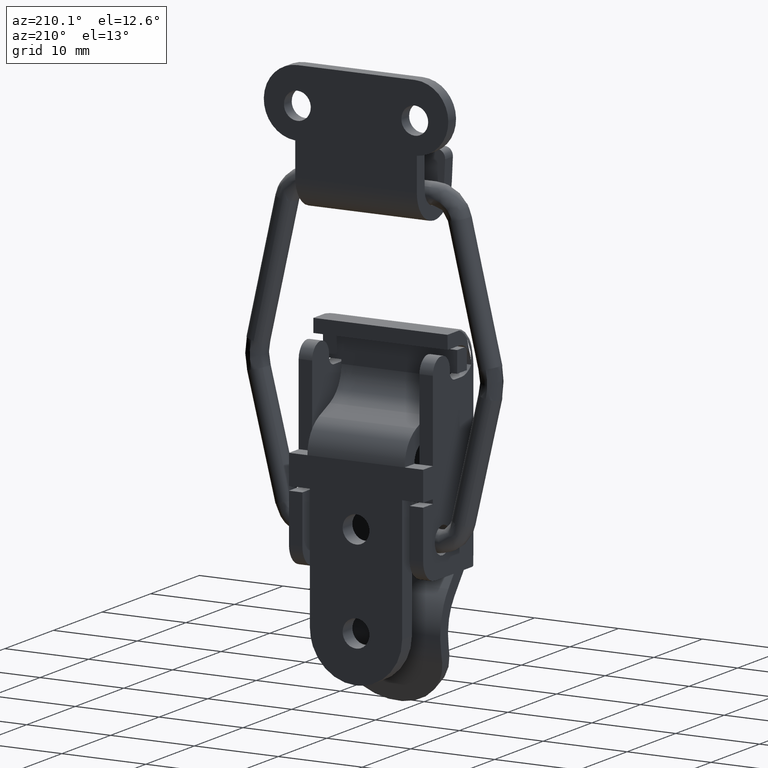
[diagram: clean part render]
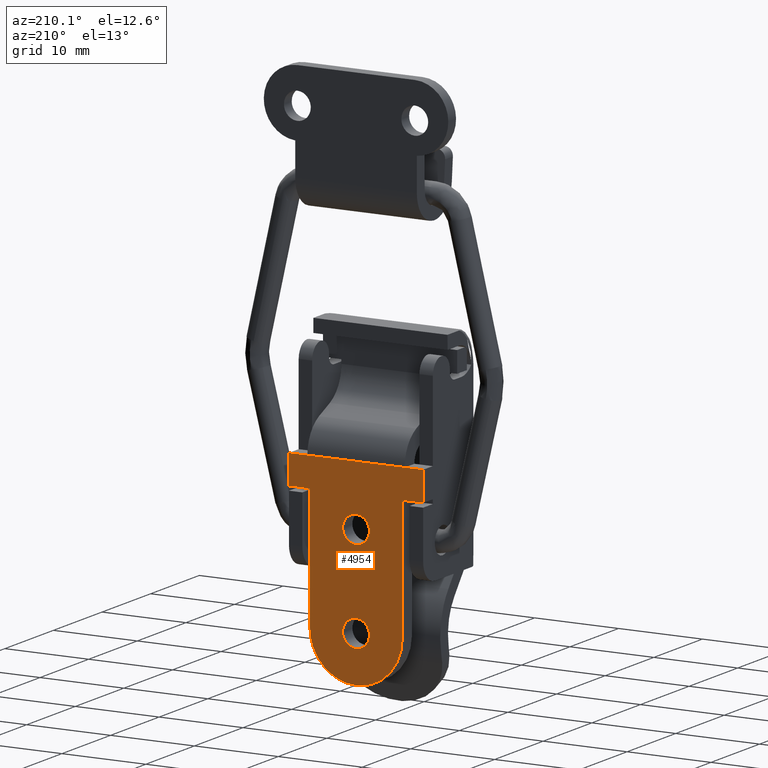
[diagram: same view with one face highlighted and labeled with its STEP entity id]
A machine part, auxiliary view. The second image highlights one B-rep face of the part: STEP entity #4954.
In plain terms, the highlighted face is a freeform B-spline surface patch.
Its self-contained STEP definition (entity closure, byte-faithful):
#3601=CARTESIAN_POINT('',(-1.146641377619789,4.000000000001780,-8.881509029619625));
#3602=VERTEX_POINT('',#3601);
#3608=CARTESIAN_POINT('',(1.421085E-012,4.000000000001780,-8.397399999999999));
#3609=VERTEX_POINT('',#3608);
#3610=CARTESIAN_POINT('',(1.421085E-012,4.000000000001780,-8.397399999999999));
#3611=CARTESIAN_POINT('',(-0.199777069978861,4.000000000001777,-8.397212866830795));
#3612=CARTESIAN_POINT('',(-0.519231305815234,4.000000000001782,-8.458059581121718));
#3613=CARTESIAN_POINT('',(-0.898200827317026,4.000000000001788,-8.658756398537314));
#3614=CARTESIAN_POINT('',(-1.072352521662893,4.000000000001770,-8.805154434762127));
#3615=CARTESIAN_POINT('',(-1.146641377619789,4.000000000001780,-8.881509029619625));
#3616=B_SPLINE_CURVE_WITH_KNOTS('',3,(#3610,#3611,#3612,#3613,#3614,#3615),.UNSPECIFIED.,.F.,.U.,(4,1,1,4),(0.000000018981200,0.599259671031083,0.958810987342932,1.278414643434506),.UNSPECIFIED.);
#3617=EDGE_CURVE('',#3609,#3602,#3616,.T.);
#3619=CARTESIAN_POINT('',(1.600000000001031,4.000000000001780,-9.997398882899390));
#3620=VERTEX_POINT('',#3619);
#3621=CARTESIAN_POINT('',(1.600000000001031,4.000000000001780,-9.997398882899390));
#3622=CARTESIAN_POINT('',(1.600234261583006,4.000000000001782,-9.787916680475689));
#3623=CARTESIAN_POINT('',(1.537393643821512,4.000000000001783,-9.473941494628258));
#3624=CARTESIAN_POINT('',(1.338918697477463,4.000000000001775,-9.102754656562604));
#3625=CARTESIAN_POINT('',(1.138665134627622,4.000000000001801,-8.858732799856298));
#3626=CARTESIAN_POINT('',(0.884481833360833,4.000000000001768,-8.650130268319133));
#3627=CARTESIAN_POINT('',(0.510405222560986,4.000000000001789,-8.455991600771313));
#3628=CARTESIAN_POINT('',(0.196378532029840,4.000000000001778,-8.397223629772977));
#3629=CARTESIAN_POINT('',(1.421085E-012,4.000000000001780,-8.397399999999999));
#3630=B_SPLINE_CURVE_WITH_KNOTS('',3,(#3621,#3622,#3623,#3624,#3625,#3626,#3627,#3628,#3629),.UNSPECIFIED.,.F.,.U.,(4,1,1,1,1,1,4),(0.000000044294005,0.628334243494221,0.942514234570562,1.256668303541938,1.570821807784393,1.924273675058549,2.513336561303909),.UNSPECIFIED.);
#3631=EDGE_CURVE('',#3620,#3609,#3630,.T.);
#3633=CARTESIAN_POINT('',(1.421085E-012,4.000000000001780,-11.597400000000000));
#3634=VERTEX_POINT('',#3633);
#3635=CARTESIAN_POINT('',(1.421085E-012,4.000000000001780,-11.597400000000000));
#3636=CARTESIAN_POINT('',(0.183284739125794,4.000000000001784,-11.597545400616211));
#3637=CARTESIAN_POINT('',(0.444986066000123,4.000000000001781,-11.551903543515261));
#3638=CARTESIAN_POINT('',(0.780972802480876,4.000000000001782,-11.402944600566810));
#3639=CARTESIAN_POINT('',(1.021578325898303,4.000000000001782,-11.242193735792130));
#3640=CARTESIAN_POINT('',(1.235481936631536,4.000000000001772,-11.028270890055220));
#3641=CARTESIAN_POINT('',(1.406436688641957,4.000000000001792,-10.779099753219571));
#3642=CARTESIAN_POINT('',(1.555717045279240,4.000000000001764,-10.442407607055900));
#3643=CARTESIAN_POINT('',(1.600092265272990,4.000000000001799,-10.167580120428241));
#3644=CARTESIAN_POINT('',(1.600000000001031,4.000000000001780,-9.997398882899390));
#3645=B_SPLINE_CURVE_WITH_KNOTS('',3,(#3635,#3636,#3637,#3638,#3639,#3640,#3641,#3642,#3643,#3644),.UNSPECIFIED.,.F.,.U.,(4,1,1,1,1,1,1,4),(0.000000042762624,0.549792557750607,0.785424600826343,1.099596308572083,1.413740072065259,1.688640914572548,2.002819506946762,2.513337820568073),.UNSPECIFIED.);
#3646=EDGE_CURVE('',#3634,#3620,#3645,.T.);
#3648=CARTESIAN_POINT('',(-1.179643998743367,4.000000000001780,-11.078344460416449));
#3649=VERTEX_POINT('',#3648);
#3650=CARTESIAN_POINT('',(-1.179643998743367,4.000000000001780,-11.078344460416449));
#3651=CARTESIAN_POINT('',(-1.076997733330954,4.000000000001779,-11.190442528493421));
#3652=CARTESIAN_POINT('',(-0.871828404679217,4.000000000001782,-11.358470220746510));
#3653=CARTESIAN_POINT('',(-0.469709734088343,4.000000000001780,-11.547987296467870));
#3654=CARTESIAN_POINT('',(-0.179644031979945,4.000000000001783,-11.597528084580849));
#3655=CARTESIAN_POINT('',(1.421085E-012,4.000000000001780,-11.597400000000000));
#3656=B_SPLINE_CURVE_WITH_KNOTS('',3,(#3650,#3651,#3652,#3653,#3654,#3655),.UNSPECIFIED.,.F.,.U.,(4,1,1,4),(0.000000012665836,0.455980283477575,0.787601589498147,1.326487513596948),.UNSPECIFIED.);
#3657=EDGE_CURVE('',#3649,#3634,#3656,.T.);
#3740=CARTESIAN_POINT('',(-1.599999999998189,4.000000000001780,-9.997401117100603));
#3741=VERTEX_POINT('',#3740);
#3742=CARTESIAN_POINT('',(-1.599999999998189,4.000000000001780,-9.997401117100603));
#3743=CARTESIAN_POINT('',(-1.600132754820304,4.000000000001779,-10.182860163107160));
#3744=CARTESIAN_POINT('',(-1.530421868667412,4.000000000001786,-10.578369085247230));
#3745=CARTESIAN_POINT('',(-1.321810399686888,4.000000000001776,-10.923516363144950));
#3746=CARTESIAN_POINT('',(-1.179643998743367,4.000000000001780,-11.078344460416449));
#3747=B_SPLINE_CURVE_WITH_KNOTS('',3,(#3742,#3743,#3744,#3745,#3746),.UNSPECIFIED.,.F.,.U.,(4,1,4),(0.000000021087042,0.556340671579398,1.186849361718108),.UNSPECIFIED.);
#3748=EDGE_CURVE('',#3741,#3649,#3747,.T.);
#3750=CARTESIAN_POINT('',(-1.146641377619789,4.000000000001780,-8.881509029619625));
#3751=CARTESIAN_POINT('',(-1.299392980116014,4.000000000001786,-9.038057732136700));
#3752=CARTESIAN_POINT('',(-1.524572989056201,4.000000000001773,-9.392933900895761));
#3753=CARTESIAN_POINT('',(-1.600157747302713,4.000000000001784,-9.804425619806695));
#3754=CARTESIAN_POINT('',(-1.599999999998189,4.000000000001780,-9.997401117100603));
#3755=B_SPLINE_CURVE_WITH_KNOTS('',3,(#3750,#3751,#3752,#3753,#3754),.UNSPECIFIED.,.F.,.U.,(4,1,4),(0.000000016034194,0.656050582261812,1.234923501442157),.UNSPECIFIED.);
#3756=EDGE_CURVE('',#3602,#3741,#3755,.T.);
#3801=CARTESIAN_POINT('',(-1.146641377619788,4.000000000001780,2.118490970380461));
#3802=VERTEX_POINT('',#3801);
#3808=CARTESIAN_POINT('',(1.421085E-012,4.000000000001780,2.602600000000086));
#3809=VERTEX_POINT('',#3808);
#3810=CARTESIAN_POINT('',(1.421085E-012,4.000000000001780,2.602600000000086));
#3811=CARTESIAN_POINT('',(-0.146487615282167,4.000000000001784,2.602651526551100));
#3812=CARTESIAN_POINT('',(-0.399469141226661,4.000000000001774,2.567599188922527));
#3813=CARTESIAN_POINT('',(-0.798054124702989,4.000000000001789,2.410942461580541));
#3814=CARTESIAN_POINT('',(-1.025966704683239,4.000000000001770,2.242635267647432));
#3815=CARTESIAN_POINT('',(-1.146641377619788,4.000000000001780,2.118490970380461));
#3816=B_SPLINE_CURVE_WITH_KNOTS('',3,(#3810,#3811,#3812,#3813,#3814,#3815),.UNSPECIFIED.,.F.,.U.,(4,1,1,4),(0.000000018981263,0.439459795652165,0.759053258994595,1.278414643434506),.UNSPECIFIED.);
#3817=EDGE_CURVE('',#3809,#3802,#3816,.T.);
#3819=CARTESIAN_POINT('',(1.600000000001031,4.000000000001780,1.002601117100695));
#3820=VERTEX_POINT('',#3819);
#3821=CARTESIAN_POINT('',(1.600000000001031,4.000000000001780,1.002601117100695));
#3822=CARTESIAN_POINT('',(1.600233683864075,4.000000000001779,1.212082705963542));
#3823=CARTESIAN_POINT('',(1.537395226043047,4.000000000001779,1.526060829505922));
#3824=CARTESIAN_POINT('',(1.338913632565354,4.000000000001784,1.897238134198291));
#3825=CARTESIAN_POINT('',(1.096978854037896,4.000000000001777,2.192161193431524));
#3826=CARTESIAN_POINT('',(0.785425036407334,4.000000000001782,2.417373546483900));
#3827=CARTESIAN_POINT('',(0.392665825429452,4.000000000001778,2.568777189714523));
#3828=CARTESIAN_POINT('',(0.143993364638617,4.000000000001786,2.602651446235164));
#3829=CARTESIAN_POINT('',(1.421085E-012,4.000000000001780,2.602600000000086));
#3830=B_SPLINE_CURVE_WITH_KNOTS('',3,(#3821,#3822,#3823,#3824,#3825,#3826,#3827,#3828,#3829),.UNSPECIFIED.,.F.,.U.,(4,1,1,1,1,1,4),(0.000000044294493,0.628334243494516,0.942514234570754,1.256668303542040,1.767186362328292,2.081364797346176,2.513336561303908),.UNSPECIFIED.);
#3831=EDGE_CURVE('',#3820,#3809,#3830,.T.);
#3833=CARTESIAN_POINT('',(1.421085E-012,4.000000000001780,-0.597399999999914));
#3834=VERTEX_POINT('',#3833);
#3835=CARTESIAN_POINT('',(1.421085E-012,4.000000000001780,-0.597399999999914));
#3836=CARTESIAN_POINT('',(0.157084624262077,4.000000000001775,-0.597467956792770));
#3837=CARTESIAN_POINT('',(0.445024091262789,4.000000000001797,-0.554633868398798));
#3838=CARTESIAN_POINT('',(0.879143995689827,4.000000000001776,-0.362298442332140));
#3839=CARTESIAN_POINT('',(1.211091631189111,4.000000000001776,-0.076006517590296));
#3840=CARTESIAN_POINT('',(1.419255082715875,4.000000000001786,0.244245132571730));
#3841=CARTESIAN_POINT('',(1.559936115028487,4.000000000001781,0.583775321946855));
#3842=CARTESIAN_POINT('',(1.600093012985627,4.000000000001767,0.832417450481348));
#3843=CARTESIAN_POINT('',(1.600000000001031,4.000000000001780,1.002601117100695));
#3844=B_SPLINE_CURVE_WITH_KNOTS('',3,(#3835,#3836,#3837,#3838,#3839,#3840,#3841,#3842,#3843),.UNSPECIFIED.,.F.,.U.,(4,1,1,1,1,1,4),(0.000000042762843,0.471247558168351,0.863970334000122,1.413740072065283,1.767187248264849,2.002819506946757,2.513337820568069),.UNSPECIFIED.);
#3845=EDGE_CURVE('',#3834,#3820,#3844,.T.);
#3847=CARTESIAN_POINT('',(-1.179643998743367,4.000000000001780,-0.078344460416362));
#3848=VERTEX_POINT('',#3847);
#3849=CARTESIAN_POINT('',(-1.179643998743367,4.000000000001780,-0.078344460416362));
#3850=CARTESIAN_POINT('',(-1.039761277696553,4.000000000001776,-0.231335087867867));
#3851=CARTESIAN_POINT('',(-0.778824633906794,4.000000000001787,-0.423021863232308));
#3852=CARTESIAN_POINT('',(-0.359231014182297,4.000000000001776,-0.569868312008938));
#3853=CARTESIAN_POINT('',(-0.124357827527163,4.000000000001783,-0.597426949082251));
#3854=CARTESIAN_POINT('',(1.421085E-012,4.000000000001780,-0.597399999999914));
#3855=B_SPLINE_CURVE_WITH_KNOTS('',3,(#3849,#3850,#3851,#3852,#3853,#3854),.UNSPECIFIED.,.F.,.U.,(4,1,1,4),(0.000000012665776,0.621791312571488,0.953412879344306,1.326487513596949),.UNSPECIFIED.);
#3856=EDGE_CURVE('',#3848,#3834,#3855,.T.);
#3939=CARTESIAN_POINT('',(-1.599999999998189,4.000000000001780,1.002598882899482));
#3940=VERTEX_POINT('',#3939);
#3941=CARTESIAN_POINT('',(-1.599999999998189,4.000000000001780,1.002598882899482));
#3942=CARTESIAN_POINT('',(-1.600132106035419,4.000000000001776,0.817139823559915));
#3943=CARTESIAN_POINT('',(-1.530422391393594,4.000000000001786,0.421631008329447));
#3944=CARTESIAN_POINT('',(-1.321810182457080,4.000000000001780,0.076483612220173));
#3945=CARTESIAN_POINT('',(-1.179643998743367,4.000000000001780,-0.078344460416362));
#3946=B_SPLINE_CURVE_WITH_KNOTS('',3,(#3941,#3942,#3943,#3944,#3945),.UNSPECIFIED.,.F.,.U.,(4,1,4),(0.000000021087281,0.556340671579478,1.186849361718104),.UNSPECIFIED.);
#3947=EDGE_CURVE('',#3940,#3848,#3946,.T.);
#3949=CARTESIAN_POINT('',(-1.146641377619788,4.000000000001780,2.118490970380461));
#3950=CARTESIAN_POINT('',(-1.263341932473897,4.000000000001782,1.998699705676772));
#3951=CARTESIAN_POINT('',(-1.420994096870962,4.000000000001781,1.775274175850098));
#3952=CARTESIAN_POINT('',(-1.567355717039873,4.000000000001778,1.388481891144603));
#3953=CARTESIAN_POINT('',(-1.600045123581846,4.000000000001780,1.144102183135451));
#3954=CARTESIAN_POINT('',(-1.599999999998189,4.000000000001780,1.002598882899482));
#3955=B_SPLINE_CURVE_WITH_KNOTS('',3,(#3949,#3950,#3951,#3952,#3953,#3954),.UNSPECIFIED.,.F.,.U.,(4,1,1,4),(0.000000016034546,0.501692600260814,0.810414270953009,1.234923501442159),.UNSPECIFIED.);
#3956=EDGE_CURVE('',#3802,#3940,#3955,.T.);
#3976=CARTESIAN_POINT('',(-7.999999999998580,4.000000000001780,4.702600000000091));
#3977=VERTEX_POINT('',#3976);
#3983=CARTESIAN_POINT('',(-5.499999999998580,4.000000000001780,4.702600000000091));
#3984=VERTEX_POINT('',#3983);
#3985=CARTESIAN_POINT('',(-5.499999999998580,4.000000000001780,4.702600000000091));
#3986=CARTESIAN_POINT('',(-7.999999999998580,4.000000000001780,4.702600000000091));
#3987=QUASI_UNIFORM_CURVE('',1,(#3985,#3986),.UNSPECIFIED.,.F.,.U.);
#3988=EDGE_CURVE('',#3984,#3977,#3987,.T.);
#4031=CARTESIAN_POINT('',(-5.499999999998580,4.000000000001780,-9.997400000000001));
#4032=VERTEX_POINT('',#4031);
#4038=CARTESIAN_POINT('',(-0.017490209435965,4.000000000001780,-15.497372190163601));
#4039=VERTEX_POINT('',#4038);
#4040=CARTESIAN_POINT('',(-5.499999999998580,4.000000000001780,-9.997400000000001));
#4041=CARTESIAN_POINT('',(-5.500076916020734,4.000000000001776,-10.401557259412550));
#4042=CARTESIAN_POINT('',(-5.432854584549775,4.000000000001781,-11.007740351294510));
#4043=CARTESIAN_POINT('',(-5.175900007078488,4.000000000001792,-11.916579699770310));
#4044=CARTESIAN_POINT('',(-4.852286129526089,4.000000000001727,-12.636346785732989));
#4045=CARTESIAN_POINT('',(-4.332941789167863,4.000000000001806,-13.426036676037890));
#4046=CARTESIAN_POINT('',(-3.627837335180034,4.000000000001765,-14.187512592487440));
#4047=CARTESIAN_POINT('',(-2.682489120923470,4.000000000001784,-14.847369162264330));
#4048=CARTESIAN_POINT('',(-1.453916659517412,4.000000000001747,-15.359713458803091));
#4049=CARTESIAN_POINT('',(-0.556381179160321,4.000000000001795,-15.495871901966570));
#4050=CARTESIAN_POINT('',(-0.017490209435965,4.000000000001780,-15.497372190163601));
#4051=B_SPLINE_CURVE_WITH_KNOTS('',3,(#4040,#4041,#4042,#4043,#4044,#4045,#4046,#4047,#4048,#4049,#4050),.UNSPECIFIED.,.F.,.U.,(4,1,1,1,1,1,1,1,4),(0.000000038804195,1.212451017167719,1.818691335724957,2.829080166680051,3.570039526391335,4.647744958956583,5.927580115957831,7.005335062755110,8.621943438344452),.UNSPECIFIED.);
#4052=EDGE_CURVE('',#4032,#4039,#4051,.T.);
#4073=CARTESIAN_POINT('',(-5.499999999998580,4.000000000001780,-9.997400000000001));
#4074=CARTESIAN_POINT('',(-5.499999999998580,4.000000000001780,4.702600000000091));
#4075=QUASI_UNIFORM_CURVE('',1,(#4073,#4074),.UNSPECIFIED.,.F.,.U.);
#4076=EDGE_CURVE('',#4032,#3984,#4075,.T.);
#4117=CARTESIAN_POINT('',(-5.799999999993530,4.000000000001780,8.202613904918884));
#4118=VERTEX_POINT('',#4117);
#4228=CARTESIAN_POINT('',(-7.999999999998580,3.999999999993610,8.202600000000091));
#4229=VERTEX_POINT('',#4228);
#4230=CARTESIAN_POINT('',(-7.999999999998580,3.999999999993610,8.202600000000091));
#4231=CARTESIAN_POINT('',(-5.799999999993530,4.000000000001780,8.202613904918884));
#4232=QUASI_UNIFORM_CURVE('',1,(#4230,#4231),.UNSPECIFIED.,.F.,.U.);
#4233=EDGE_CURVE('',#4229,#4118,#4232,.T.);
#4257=CARTESIAN_POINT('',(0.017490209438807,4.000000000001780,-15.497372190163601));
#4258=VERTEX_POINT('',#4257);
#4259=CARTESIAN_POINT('',(5.499999999982849,4.000000000001780,-9.997400000008570));
#4260=VERTEX_POINT('',#4259);
#4261=CARTESIAN_POINT('',(0.017490209438807,4.000000000001780,-15.497372190163601));
#4262=CARTESIAN_POINT('',(0.331826423631874,4.000000000001776,-15.496392401652059));
#4263=CARTESIAN_POINT('',(1.027674971639179,4.000000000001782,-15.434361106707920));
#4264=CARTESIAN_POINT('',(1.917500925958051,4.000000000001795,-15.179708253703440));
#4265=CARTESIAN_POINT('',(2.872273087099665,4.000000000001756,-14.725503021911839));
#4266=CARTESIAN_POINT('',(3.659507317440541,4.000000000001799,-14.154200481268679));
#4267=CARTESIAN_POINT('',(4.404444852698660,4.000000000001768,-13.339802435526380));
#4268=CARTESIAN_POINT('',(4.862270937704737,4.000000000001787,-12.614994213082420));
#4269=CARTESIAN_POINT('',(5.194106844557702,4.000000000001778,-11.852000521826330));
#4270=CARTESIAN_POINT('',(5.431933251260623,4.000000000001782,-11.030206853689970));
#4271=CARTESIAN_POINT('',(5.500061882334649,4.000000000001785,-10.379099558452390));
#4272=CARTESIAN_POINT('',(5.499999999982849,4.000000000001780,-9.997400000008570));
#4273=B_SPLINE_CURVE_WITH_KNOTS('',3,(#4261,#4262,#4263,#4264,#4265,#4266,#4267,#4268,#4269,#4270,#4271,#4272),.UNSPECIFIED.,.F.,.U.,(4,1,1,1,1,1,1,1,1,4),(0.000000038805739,0.943020218408040,2.088126474914316,2.761717308220626,4.108916491938818,4.984545769853881,6.062298895993227,6.668534940908477,7.476851890554950,8.621943438326939),.UNSPECIFIED.);
#4274=EDGE_CURVE('',#4258,#4260,#4273,.T.);
#4321=CARTESIAN_POINT('',(5.500000000005960,4.000000000001780,4.702599999991440));
#4322=VERTEX_POINT('',#4321);
#4323=CARTESIAN_POINT('',(5.500000000005960,4.000000000001780,4.702599999991440));
#4324=CARTESIAN_POINT('',(5.499999999982849,4.000000000001780,-9.997400000008570));
#4325=QUASI_UNIFORM_CURVE('',1,(#4323,#4324),.UNSPECIFIED.,.F.,.U.);
#4326=EDGE_CURVE('',#4322,#4260,#4325,.T.);
#4349=CARTESIAN_POINT('',(8.000000000001421,3.999999999994820,4.702599999989480));
#4350=VERTEX_POINT('',#4349);
#4351=CARTESIAN_POINT('',(8.000000000001421,3.999999999994820,4.702599999989480));
#4352=CARTESIAN_POINT('',(5.500000000005960,4.000000000001780,4.702599999991440));
#4353=QUASI_UNIFORM_CURVE('',1,(#4351,#4352),.UNSPECIFIED.,.F.,.U.);
#4354=EDGE_CURVE('',#4350,#4322,#4353,.T.);
#4426=CARTESIAN_POINT('',(5.800000000006410,4.000000000001780,8.202613904914324));
#4427=VERTEX_POINT('',#4426);
#4480=CARTESIAN_POINT('',(8.000000000011459,4.000000000001780,8.202599999987511));
#4481=VERTEX_POINT('',#4480);
#4487=CARTESIAN_POINT('',(5.800000000006410,4.000000000001780,8.202613904914324));
#4488=CARTESIAN_POINT('',(8.000000000011459,4.000000000001780,8.202599999987511));
#4489=QUASI_UNIFORM_CURVE('',1,(#4487,#4488),.UNSPECIFIED.,.F.,.U.);
#4490=EDGE_CURVE('',#4427,#4481,#4489,.T.);
#4586=CARTESIAN_POINT('',(-0.017490209435965,4.000000000001780,-15.497372190163601));
#4587=CARTESIAN_POINT('',(0.017490209438807,4.000000000001780,-15.497372190163601));
#4588=QUASI_UNIFORM_CURVE('',1,(#4586,#4587),.UNSPECIFIED.,.F.,.U.);
#4589=EDGE_CURVE('',#4039,#4258,#4588,.T.);
#4661=CARTESIAN_POINT('',(8.000000000011459,4.000000000001780,8.202599999987511));
#4662=CARTESIAN_POINT('',(8.000000000001421,3.999999999994820,4.702599999989480));
#4663=QUASI_UNIFORM_CURVE('',1,(#4661,#4662),.UNSPECIFIED.,.F.,.U.);
#4664=EDGE_CURVE('',#4481,#4350,#4663,.T.);
#4703=CARTESIAN_POINT('',(-7.999999999998580,3.999999999993610,8.202600000000091));
#4704=CARTESIAN_POINT('',(-7.999999999998580,4.000000000001780,4.702600000000091));
#4705=QUASI_UNIFORM_CURVE('',1,(#4703,#4704),.UNSPECIFIED.,.F.,.U.);
#4706=EDGE_CURVE('',#4229,#3977,#4705,.T.);
#4817=CARTESIAN_POINT('',(-5.799999999993530,4.000000000001780,8.202613904918884));
#4818=CARTESIAN_POINT('',(5.800000000006410,4.000000000001780,8.202613904914324));
#4819=QUASI_UNIFORM_CURVE('',1,(#4817,#4818),.UNSPECIFIED.,.F.,.U.);
#4820=EDGE_CURVE('',#4118,#4427,#4819,.T.);
#4919=CARTESIAN_POINT('',(-8.799199968987978,3.999999999993202,9.386428164433079));
#4920=CARTESIAN_POINT('',(-8.799199968987978,4.000000000002215,-16.681187085360971));
#4921=CARTESIAN_POINT('',(8.799200398154298,3.999999999993202,9.386428164433079));
#4922=CARTESIAN_POINT('',(8.799200398154298,4.000000000002215,-16.681187085360971));
#4923=B_SPLINE_SURFACE_WITH_KNOTS('',1,1,((#4919,#4921),(#4920,#4922)),.UNSPECIFIED.,.F.,.F.,.U.,(2,2),(2,2),(0.0,26.067615249794049),(0.0,17.598400367142279),.UNSPECIFIED.);
#4924=ORIENTED_EDGE('',*,*,#3988,.T.);
#4925=ORIENTED_EDGE('',*,*,#4706,.F.);
#4926=ORIENTED_EDGE('',*,*,#4233,.T.);
#4927=ORIENTED_EDGE('',*,*,#4820,.T.);
#4928=ORIENTED_EDGE('',*,*,#4490,.T.);
#4929=ORIENTED_EDGE('',*,*,#4664,.T.);
#4930=ORIENTED_EDGE('',*,*,#4354,.T.);
#4931=ORIENTED_EDGE('',*,*,#4326,.T.);
#4932=ORIENTED_EDGE('',*,*,#4274,.F.);
#4933=ORIENTED_EDGE('',*,*,#4589,.F.);
#4934=ORIENTED_EDGE('',*,*,#4052,.F.);
#4935=ORIENTED_EDGE('',*,*,#4076,.T.);
#4936=EDGE_LOOP('',(#4924,#4925,#4926,#4927,#4928,#4929,#4930,#4931,#4932,#4933,#4934,#4935));
#4937=FACE_OUTER_BOUND('',#4936,.T.);
#4938=ORIENTED_EDGE('',*,*,#3845,.T.);
#4939=ORIENTED_EDGE('',*,*,#3831,.T.);
#4940=ORIENTED_EDGE('',*,*,#3817,.T.);
#4941=ORIENTED_EDGE('',*,*,#3956,.T.);
#4942=ORIENTED_EDGE('',*,*,#3947,.T.);
#4943=ORIENTED_EDGE('',*,*,#3856,.T.);
#4944=EDGE_LOOP('',(#4938,#4939,#4940,#4941,#4942,#4943));
#4945=FACE_BOUND('',#4944,.T.);
#4946=ORIENTED_EDGE('',*,*,#3646,.T.);
#4947=ORIENTED_EDGE('',*,*,#3631,.T.);
#4948=ORIENTED_EDGE('',*,*,#3617,.T.);
#4949=ORIENTED_EDGE('',*,*,#3756,.T.);
#4950=ORIENTED_EDGE('',*,*,#3748,.T.);
#4951=ORIENTED_EDGE('',*,*,#3657,.T.);
#4952=EDGE_LOOP('',(#4946,#4947,#4948,#4949,#4950,#4951));
#4953=FACE_BOUND('',#4952,.T.);
#4954=ADVANCED_FACE('',(#4937,#4945,#4953),#4923,.F.);